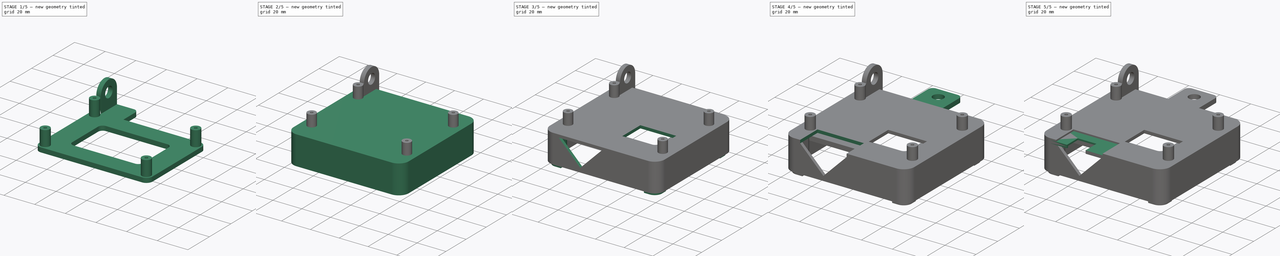
[diagram: build sequence overview — one tinted view per stage of 5, left to right]
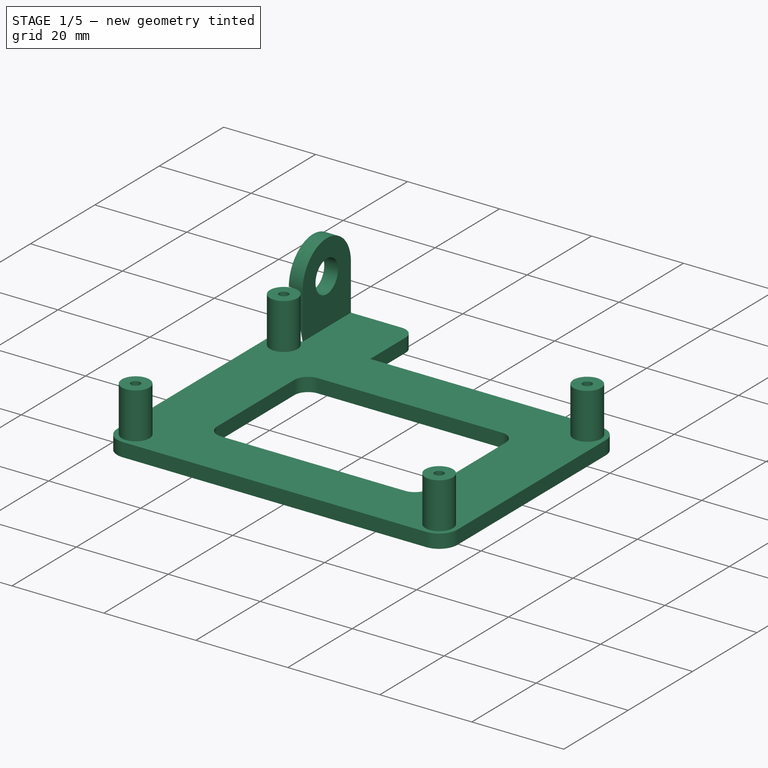
[diagram: stage 1 of 5 — iso view after this stage's code; geometry added in this stage tinted green]
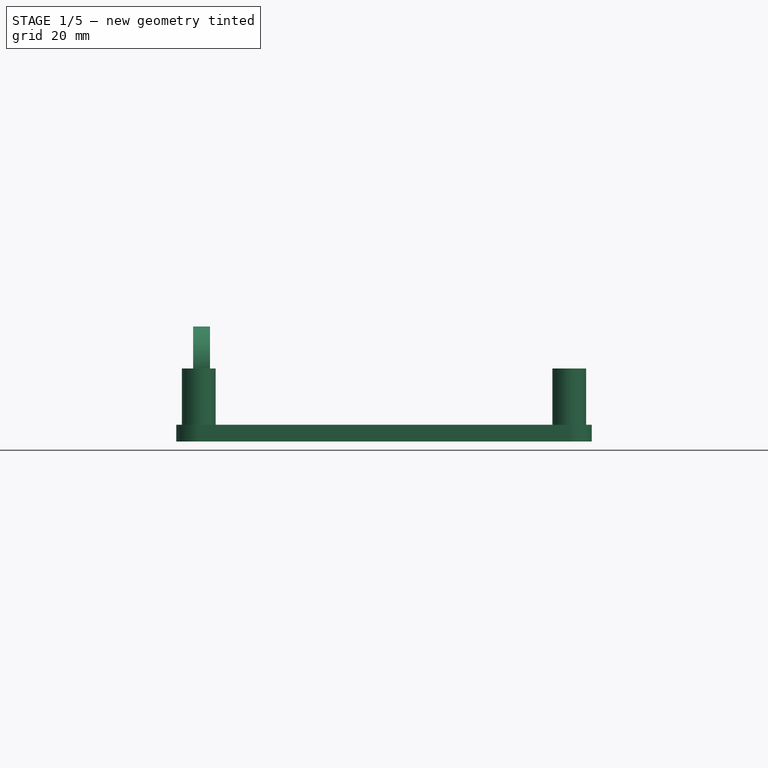
[diagram: stage 1 of 5 — front view after this stage's code; geometry added in this stage tinted green]
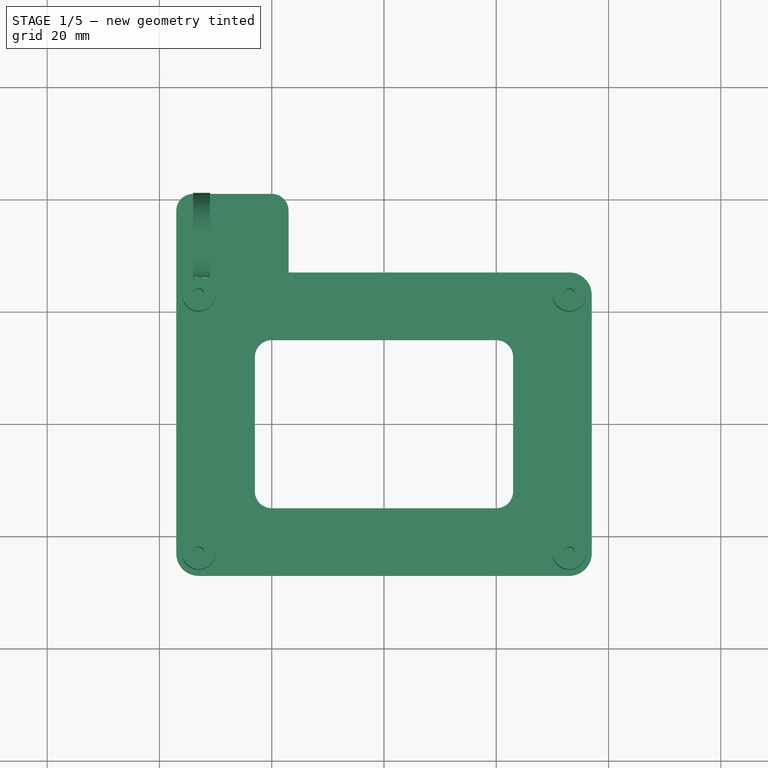
[diagram: stage 1 of 5 — top view after this stage's code; geometry added in this stage tinted green]
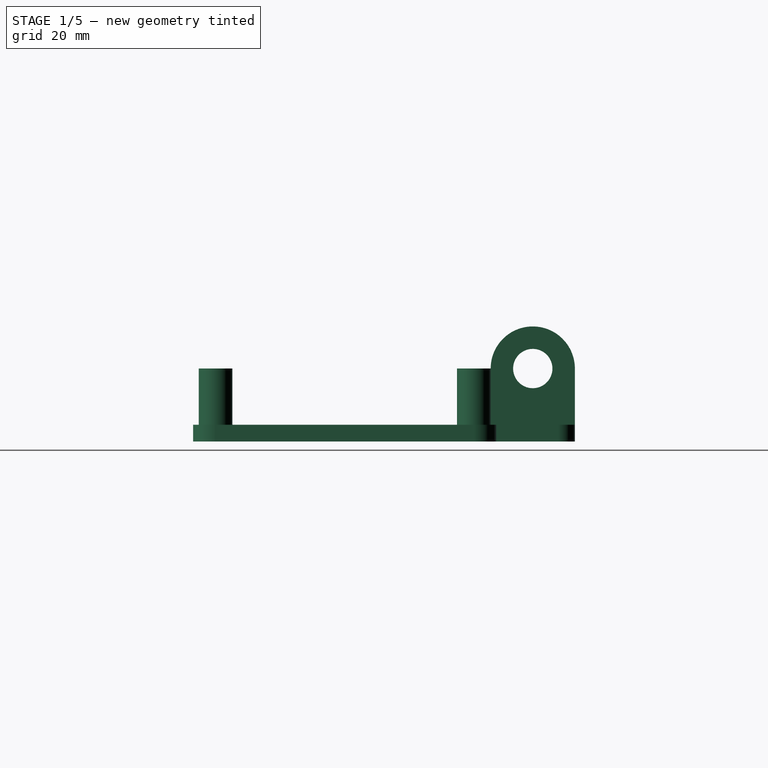
[diagram: stage 1 of 5 — right view after this stage's code; geometry added in this stage tinted green]
FCSTD DOCUMENT  (FreeCAD 1.0R39109 (Git))
Label: LoRa2MQTT
License: All rights reserved
LicenseURL: https://en.wikipedia.org/wiki/All_rights_reserved
objects: Sketcher::SketchObject×15, PartDesign::Pad×10, PartDesign::Pocket×5, PartDesign::Body×3, PartDesign::SubtractiveCylinder×1, PartDesign::SubtractiveBox×1, PartDesign::AdditiveBox×1
note: 87 computed .brp shape members not serialized (recipe doc carries the construction recipe); baked Part::Feature solids carry a one-line shape summary decoded from their .brp

FEATURE [Sketcher::SketchObject] Sketch007
  ArcFitTolerance = 1e-06
  AttachmentSupport = -> [XY_Plane005]
  FullyConstrained = true
  MakeInternals = false
  MapMode = 5
  sketch-geometry (24):
    g0: LineSegment [constr] StartX=-33 StartY=23 StartZ=0 EndX=-33 EndY=-23 EndZ=0
    g1: LineSegment [constr] StartX=-33 StartY=-23 StartZ=0 EndX=33 EndY=-23 EndZ=0
    g2: LineSegment [constr] StartX=33 StartY=-23 StartZ=0 EndX=33 EndY=23 EndZ=0
    g3: LineSegment [constr] StartX=33 StartY=23 StartZ=0 EndX=-33 EndY=23 EndZ=0
    g4: LineSegment StartX=-37 StartY=23 StartZ=0 EndX=-37 EndY=-23 EndZ=0
    g5: LineSegment StartX=-33 StartY=-27 StartZ=0 EndX=33 EndY=-27 EndZ=0
    g6: LineSegment StartX=37 StartY=-23 StartZ=0 EndX=37 EndY=23 EndZ=0
    g7: LineSegment StartX=33 StartY=27 StartZ=0 EndX=-33 EndY=27 EndZ=0
    g8: ArcOfCircle CenterX=-33 CenterY=23 CenterZ=0 NormalX=0 NormalY=0 NormalZ=1 AngleXU=0 Radius=4 StartAngle=1.5708 EndAngle=3.14159
    g9: ArcOfCircle CenterX=-33 CenterY=-23 CenterZ=0 NormalX=0 NormalY=0 NormalZ=1 AngleXU=0 Radius=4 StartAngle=3.14159 EndAngle=4.71239
    g10: ArcOfCircle CenterX=33 CenterY=-23 CenterZ=0 NormalX=0 NormalY=0 NormalZ=1 AngleXU=0 Radius=4 StartAngle=4.71239 EndAngle=6.28319
    g11: ArcOfCircle CenterX=33 CenterY=23 CenterZ=0 NormalX=0 NormalY=0 NormalZ=1 AngleXU=0 Radius=4 StartAngle=1e-16 EndAngle=1.5708
    g12: GeomPoint [constr] X=-37 Y=27 Z=0
    g13: GeomPoint [constr] X=37 Y=-27 Z=0
    g14: LineSegment StartX=-23 StartY=12 StartZ=0 EndX=-23 EndY=-12 EndZ=0
    g15: LineSegment StartX=-20 StartY=-15 StartZ=0 EndX=20 EndY=-15 EndZ=0
    g16: LineSegment StartX=23 StartY=-12 StartZ=0 EndX=23 EndY=12 EndZ=0
    g17: LineSegment StartX=20 StartY=15 StartZ=0 EndX=-20 EndY=15 EndZ=0
    g18: ArcOfCircle CenterX=-20 CenterY=12 CenterZ=0 NormalX=0 NormalY=0 NormalZ=1 AngleXU=0 Radius=3 StartAngle=1.5708 EndAngle=3.14159
    g19: ArcOfCircle CenterX=-20 CenterY=-12 CenterZ=0 NormalX=0 NormalY=0 NormalZ=1 AngleXU=0 Radius=3 StartAngle=3.14159 EndAngle=4.71239
    g20: ArcOfCircle CenterX=20 CenterY=-12 CenterZ=0 NormalX=0 NormalY=0 NormalZ=1 AngleXU=0 Radius=3 StartAngle=4.71239 EndAngle=6.28319
    g21: ArcOfCircle CenterX=20 CenterY=12 CenterZ=0 NormalX=0 NormalY=0 NormalZ=1 AngleXU=0 Radius=3 StartAngle=3e-16 EndAngle=1.5708
    g22: GeomPoint [constr] X=-23 Y=15 Z=0
    g23: GeomPoint [constr] X=23 Y=-15 Z=0
  constraints (56):
    c: Coincident(g0,g1)
    c: Coincident(g1,g2)
    c: Coincident(g2,g3)
    c: Coincident(g3,g0)
    c: Vertical(g0)
    c: Vertical(g2)
    c: Horizontal(g1)
    c: Horizontal(g3)
    c: DistanceX(g3,g3) = 66
    c: DistanceY(g2,g2) = 46
    c: Symmetric(g0,g1,g-1)
    c: Tangent(g4,g8) = -1.5708
    c: Tangent(g4,g9) = -1.5708
    c: Tangent(g5,g9) = -1.5708
    c: Tangent(g5,g10) = -1.5708
    c: Tangent(g6,g10) = -1.5708
    c: Tangent(g6,g11) = -1.5708
    c: Tangent(g7,g11) = -1.5708
    c: Tangent(g7,g8) = -1.5708
    c: Vertical(g4)
    c: Vertical(g6)
    c: Horizontal(g5)
    c: Horizontal(g7)
    c: Equal(g8,g9)
    c: Equal(g9,g10)
    c: Equal(g10,g11)
    c: PointOnObject(g12,g4)
    c: PointOnObject(g12,g7)
    c: PointOnObject(g13,g5)
    c: PointOnObject(g13,g6)
    c: Radius(g11) = 4
    c: Coincident(g8,g0)
    c: Coincident(g10,g1)
    c: Tangent(g14,g18) = -1.5708
    c: Tangent(g14,g19) = -1.5708
    c: Tangent(g15,g19) = -1.5708
    c: Tangent(g15,g20) = -1.5708
    c: Tangent(g16,g20) = -1.5708
    c: Tangent(g16,g21) = -1.5708
    c: Tangent(g17,g21) = -1.5708
    c: Tangent(g17,g18) = -1.5708
    c: Vertical(g14)
    c: Vertical(g16)
    c: Horizontal(g15)
    c: Horizontal(g17)
    c: Equal(g18,g19)
    c: Equal(g19,g20)
    c: Equal(g20,g21)
    c: PointOnObject(g22,g14)
    c: PointOnObject(g22,g17)
    c: PointOnObject(g23,g15)
    c: PointOnObject(g23,g16)
    c: Symmetric(g22,g23,g-1)
    c: Radius(g18) = 3
    c: DistanceX(g22,g23) = 46
    c: DistanceY(g23,g22) = 30
FEATURE [PartDesign::Pad] Pad006
  Direction = (0,0,1)
  Length = 3
  Length2 = 10
  Profile = -> Sketch007
  ReferenceAxis = -> Sketch007 [N_Axis]
  Reversed = true
  Suppressed = false
  Type = 0
FEATURE [Sketcher::SketchObject] Sketch008
  ArcFitTolerance = 1e-06
  AttachmentSupport = -> [XY_Plane005]
  FullyConstrained = true
  MakeInternals = false
  MapMode = 5
  sketch-geometry (12):
    g0: LineSegment [constr] StartX=-33 StartY=23 StartZ=0 EndX=-33 EndY=-23 EndZ=0
    g1: LineSegment [constr] StartX=-33 StartY=-23 StartZ=0 EndX=33 EndY=-23 EndZ=0
    g2: LineSegment [constr] StartX=33 StartY=-23 StartZ=0 EndX=33 EndY=23 EndZ=0
    g3: LineSegment [constr] StartX=33 StartY=23 StartZ=0 EndX=-33 EndY=23 EndZ=0
    g4: Circle CenterX=-33 CenterY=23 CenterZ=0 NormalX=0 NormalY=0 NormalZ=1 AngleXU=0 Radius=3
    g5: Circle CenterX=33 CenterY=23 CenterZ=0 NormalX=0 NormalY=0 NormalZ=1 AngleXU=0 Radius=3
    g6: Circle CenterX=33 CenterY=-23 CenterZ=0 NormalX=0 NormalY=0 NormalZ=1 AngleXU=0 Radius=3
    g7: Circle CenterX=-33 CenterY=-23 CenterZ=0 NormalX=0 NormalY=0 NormalZ=1 AngleXU=0 Radius=3
    g8: Circle CenterX=-33 CenterY=23 CenterZ=0 NormalX=0 NormalY=0 NormalZ=1 AngleXU=0 Radius=1
    g9: Circle CenterX=33 CenterY=23 CenterZ=0 NormalX=0 NormalY=0 NormalZ=1 AngleXU=0 Radius=1
    g10: Circle CenterX=33 CenterY=-23 CenterZ=0 NormalX=0 NormalY=0 NormalZ=1 AngleXU=0 Radius=1
    g11: Circle CenterX=-33 CenterY=-23 CenterZ=0 NormalX=0 NormalY=0 NormalZ=1 AngleXU=0 Radius=1
  constraints (27):
    c: Coincident(g0,g1)
    c: Coincident(g1,g2)
    c: Coincident(g2,g3)
    c: Coincident(g3,g0)
    c: Vertical(g0)
    c: Vertical(g2)
    c: Horizontal(g1)
    c: Horizontal(g3)
    c: DistanceX(g3,g3) = 66
    c: DistanceY(g2,g2) = 46
    c: Symmetric(g0,g1,g-1)
    c: Coincident(g4,g0)
    c: Coincident(g5,g2)
    c: Coincident(g6,g1)
    c: Coincident(g7,g0)
    c: Equal(g4,g5)
    c: Equal(g5,g6)
    c: Equal(g6,g7)
    c: Diameter(g5) = 6
    c: Coincident(g8,g0)
    c: Coincident(g9,g2)
    c: Coincident(g10,g1)
    c: Coincident(g11,g0)
    c: Equal(g11,g8)
    c: Equal(g8,g9)
    c: Equal(g9,g10)
    c: Diameter(g10) = 2
FEATURE [PartDesign::Pad] Pad007
  BaseFeature = -> Pad006
  Direction = (0,0,1)
  Length = 10
  Length2 = 10
  Profile = -> Sketch008
  ReferenceAxis = -> Sketch008 [N_Axis]
  Suppressed = false
  Type = 0
FEATURE [PartDesign::Body] Body006  label="Top"
  AllowCompound = false
  Group = -> [Sketch009,Pad008,Sketch010,Pad009,Sketch014,Pocket002,Sketch016,Pocket003,Sketch017,Pad,Sketch018,Pocket004,Cylinder,Sketch019,Pad012,Box]
  Origin = -> Origin006
  Placement = pos=(0,0,20) rot=(0,0,1;0rad)
  Tip = -> Box
FEATURE [Sketcher::SketchObject] Sketch020
  ArcFitTolerance = 1e-06
  AttachmentSupport = -> [XY_Plane005]
  FullyConstrained = true
  MakeInternals = false
  MapMode = 5
  sketch-geometry (6):
    g0: LineSegment StartX=-37 StartY=38 StartZ=0 EndX=-37 EndY=23 EndZ=0
    g1: LineSegment StartX=-37 StartY=23 StartZ=0 EndX=-17 EndY=23 EndZ=0
    g2: LineSegment StartX=-17 StartY=23 StartZ=0 EndX=-17 EndY=38 EndZ=0
    g3: LineSegment StartX=-34 StartY=41 StartZ=0 EndX=-20 EndY=41 EndZ=0
    g4: ArcOfCircle CenterX=-34 CenterY=38 CenterZ=0 NormalX=0 NormalY=0 NormalZ=1 AngleXU=0 Radius=3 StartAngle=1.5708 EndAngle=3.14159
    g5: ArcOfCircle CenterX=-20 CenterY=38 CenterZ=0 NormalX=0 NormalY=0 NormalZ=1 AngleXU=0 Radius=3 StartAngle=0 EndAngle=1.5708
  constraints (16):
    c: Coincident(g0,g1)
    c: Coincident(g1,g2)
    c: Vertical(g0)
    c: Vertical(g2)
    c: Horizontal(g1)
    c: DistanceX(g0) = -37
    c: DistanceY(g-1,g1) = 23
    c: DistanceX(g1,g1) = 20
    c: Horizontal(g3)
    c: DistanceY(g1,g5) = 15
    c: Radius(g5) = 3
    c: Radius(g4) = 3
    c: Tangent(g4,g3) = 1.5708
    c: Tangent(g4,g0) = -1.5708
    c: Tangent(g5,g3) = 1.5708
    c: Tangent(g5,g2) = -1.5708
FEATURE [PartDesign::Pad] Pad013
  BaseFeature = -> Pad007
  Direction = (0,0,1)
  Length = 3
  Length2 = 10
  Profile = -> Sketch020
  ReferenceAxis = -> Sketch020 [N_Axis]
  Reversed = true
  Suppressed = false
  Type = 0
FEATURE [Sketcher::SketchObject] Sketch021
  ArcFitTolerance = 1e-06
  AttachmentOffset = pos=(0,0,-34) rot=(0,0,1;0rad)
  AttachmentSupport = -> [YZ_Plane005]
  FullyConstrained = true
  MakeInternals = false
  MapMode = 5
  Placement = pos=(-34,0,0) rot=(0.57735,0.57735,0.57735;2.0944rad)
  sketch-geometry (5):
    g0: LineSegment StartX=41 StartY=0 StartZ=0 EndX=41 EndY=10 EndZ=0
    g1: LineSegment StartX=26 StartY=10 StartZ=0 EndX=26 EndY=0 EndZ=0
    g2: LineSegment StartX=26 StartY=0 StartZ=0 EndX=41 EndY=0 EndZ=0
    g3: ArcOfCircle CenterX=33.5 CenterY=10 CenterZ=0 NormalX=0 NormalY=0 NormalZ=1 AngleXU=0 Radius=7.5 StartAngle=0 EndAngle=3.14159
    g4: Circle CenterX=33.5 CenterY=10 CenterZ=0 NormalX=0 NormalY=0 NormalZ=1 AngleXU=0 Radius=3.5
  constraints (13):
    c: Coincident(g1,g2)
    c: Coincident(g2,g0)
    c: Vertical(g0)
    c: Vertical(g1)
    c: Horizontal(g2)
    c: DistanceX(g2,g2) = 15
    c: DistanceX(g1) = 26
    c: DistanceY(g1) = 0
    c: Tangent(g3,g0) = -1.5708
    c: Tangent(g3,g1) = -1.5708
    c: DistanceY(g0,g0) = 10
    c: Coincident(g4,g3)
    c: Diameter(g4) = 7
FEATURE [PartDesign::Pad] Pad014
  BaseFeature = -> Pad013
  Direction = (1,0,0)
  Length = 3
  Length2 = 10
  Profile = -> Sketch021
  ReferenceAxis = -> Sketch021 [N_Axis]
  Suppressed = false
  Type = 0
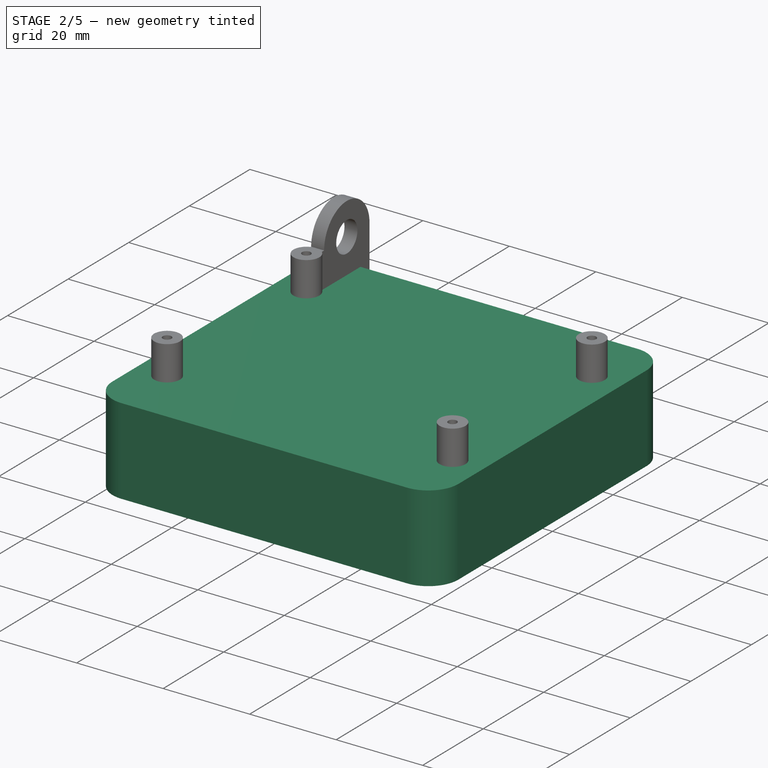
[diagram: stage 2 of 5 — iso view after this stage's code; geometry added in this stage tinted green]
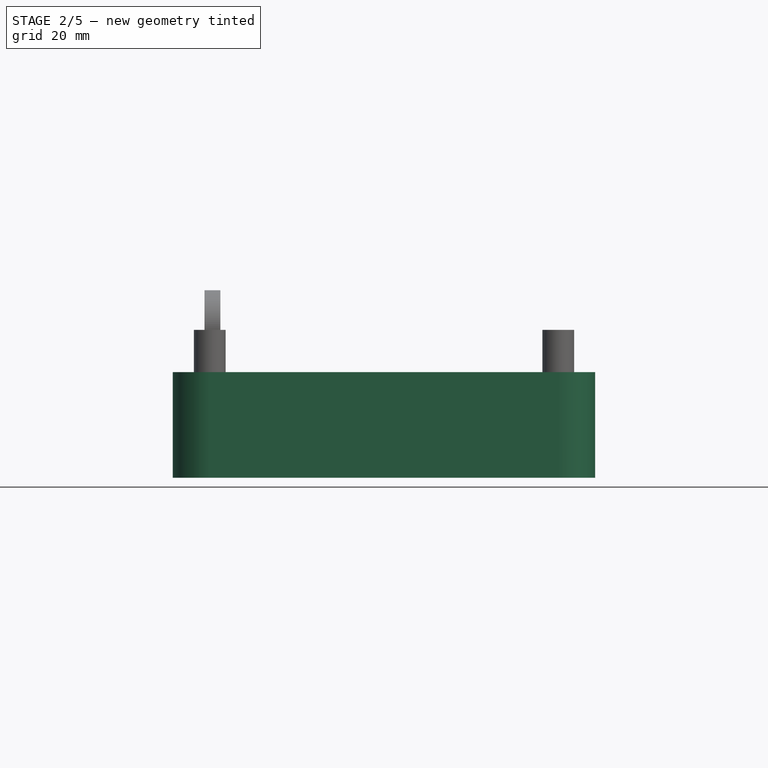
[diagram: stage 2 of 5 — front view after this stage's code; geometry added in this stage tinted green]
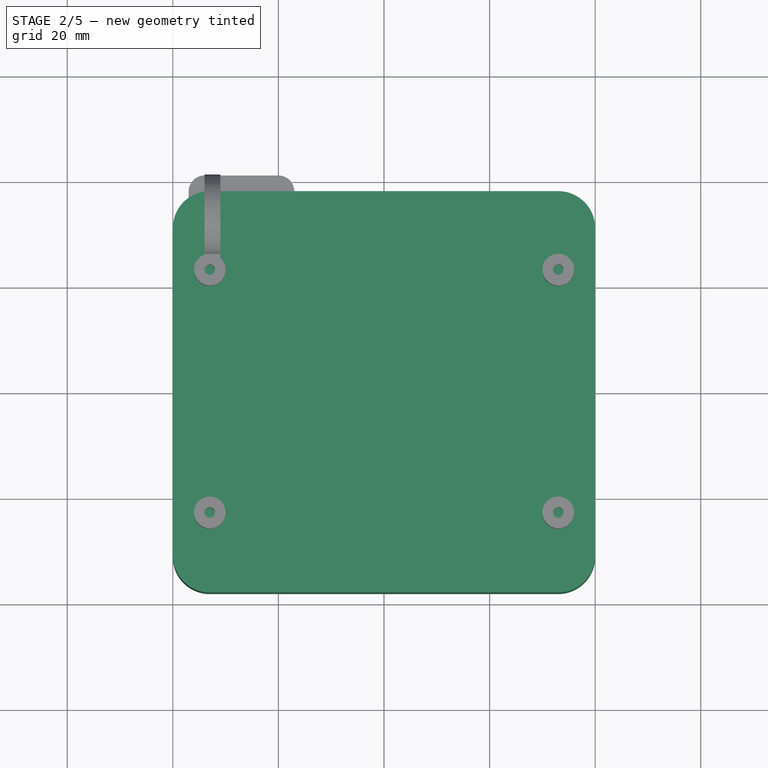
[diagram: stage 2 of 5 — top view after this stage's code; geometry added in this stage tinted green]
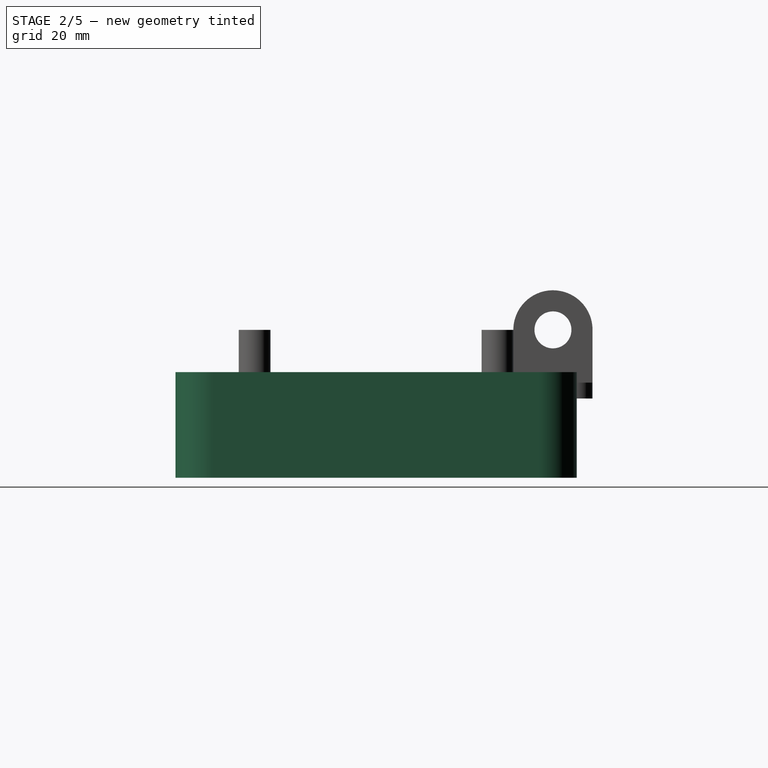
[diagram: stage 2 of 5 — right view after this stage's code; geometry added in this stage tinted green]
FEATURE [Sketcher::SketchObject] Sketch009
  ArcFitTolerance = 1e-06
  AttachmentSupport = -> [XY_Plane006]
  FullyConstrained = true
  MakeInternals = false
  MapMode = 5
  sketch-geometry (14):
    g0: LineSegment [constr] StartX=-33 StartY=23 StartZ=0 EndX=-33 EndY=-23 EndZ=0
    g1: LineSegment [constr] StartX=-33 StartY=-23 StartZ=0 EndX=33 EndY=-23 EndZ=0
    g2: LineSegment [constr] StartX=33 StartY=-23 StartZ=0 EndX=33 EndY=23 EndZ=0
    g3: LineSegment [constr] StartX=33 StartY=23 StartZ=0 EndX=-33 EndY=23 EndZ=0
    g4: LineSegment StartX=-40 StartY=31 StartZ=0 EndX=-40 EndY=-31 EndZ=0
    g5: LineSegment StartX=-33 StartY=-38 StartZ=0 EndX=33 EndY=-38 EndZ=0
    g6: LineSegment StartX=40 StartY=-31 StartZ=0 EndX=40 EndY=31 EndZ=0
    g7: LineSegment StartX=33 StartY=38 StartZ=0 EndX=-33 EndY=38 EndZ=0
    g8: ArcOfCircle CenterX=-33 CenterY=31 CenterZ=0 NormalX=0 NormalY=0 NormalZ=1 AngleXU=0 Radius=7 StartAngle=1.5708 EndAngle=3.14159
    g9: ArcOfCircle CenterX=-33 CenterY=-31 CenterZ=0 NormalX=0 NormalY=0 NormalZ=1 AngleXU=0 Radius=7 StartAngle=3.14159 EndAngle=4.71239
    g10: ArcOfCircle CenterX=33 CenterY=-31 CenterZ=0 NormalX=0 NormalY=0 NormalZ=1 AngleXU=0 Radius=7 StartAngle=4.71239 EndAngle=6.28319
    g11: ArcOfCircle CenterX=33 CenterY=31 CenterZ=0 NormalX=0 NormalY=0 NormalZ=1 AngleXU=0 Radius=7 StartAngle=8.64e-14 EndAngle=1.5708
    g12: GeomPoint [constr] X=-40 Y=38 Z=0
    g13: GeomPoint [constr] X=40 Y=-38 Z=0
  constraints (35):
    c: Coincident(g0,g1)
    c: Coincident(g1,g2)
    c: Coincident(g2,g3)
    c: Coincident(g3,g0)
    c: Vertical(g0)
    c: Vertical(g2)
    c: Horizontal(g1)
    c: Horizontal(g3)
    c: DistanceX(g3,g3) = 66
    c: DistanceY(g2,g2) = 46
    c: Symmetric(g0,g1,g-1)
    c: Tangent(g4,g8) = -1.5708
    c: Tangent(g4,g9) = -1.5708
    c: Tangent(g5,g9) = -1.5708
    c: Tangent(g5,g10) = -1.5708
    c: Tangent(g6,g10) = -1.5708
    c: Tangent(g6,g11) = -1.5708
    c: Tangent(g7,g11) = -1.5708
    c: Tangent(g7,g8) = -1.5708
    c: Vertical(g4)
    c: Vertical(g6)
    c: Horizontal(g5)
    c: Horizontal(g7)
    c: Equal(g8,g9)
    c: Equal(g9,g10)
    c: Equal(g10,g11)
    c: PointOnObject(g12,g4)
    c: PointOnObject(g12,g7)
    c: PointOnObject(g13,g5)
    c: PointOnObject(g13,g6)
    c: Radius(g11) = 7
    c: DistanceY(g0,g8) = 8
    c: DistanceY(g10,g1) = 8
    c: DistanceX(g8,g0) = 0
    c: DistanceX(g1,g10) = 0
FEATURE [PartDesign::Pad] Pad008
  Direction = (0,0,1)
  Length = 2
  Length2 = 10
  Profile = -> Sketch009
  ReferenceAxis = -> Sketch009 [N_Axis]
  Suppressed = false
  Type = 0
FEATURE [Sketcher::SketchObject] Sketch010
  ArcFitTolerance = 1e-06
  AttachmentSupport = -> [XY_Plane006]
  FullyConstrained = true
  MakeInternals = false
  MapMode = 5
  sketch-geometry (24):
    g0: LineSegment [constr] StartX=-33 StartY=23 StartZ=0 EndX=-33 EndY=-23 EndZ=0
    g1: LineSegment [constr] StartX=-33 StartY=-23 StartZ=0 EndX=33 EndY=-23 EndZ=0
    g2: LineSegment [constr] StartX=33 StartY=-23 StartZ=0 EndX=33 EndY=23 EndZ=0
    g3: LineSegment [constr] StartX=33 StartY=23 StartZ=0 EndX=-33 EndY=23 EndZ=0
    g4: LineSegment StartX=-40 StartY=31 StartZ=0 EndX=-40 EndY=-31 EndZ=0
    g5: LineSegment StartX=-33 StartY=-38 StartZ=0 EndX=33 EndY=-38 EndZ=0
    g6: LineSegment StartX=40 StartY=-31 StartZ=0 EndX=40 EndY=31 EndZ=0
    g7: LineSegment StartX=33 StartY=38 StartZ=0 EndX=-33 EndY=38 EndZ=0
    g8: ArcOfCircle CenterX=-33 CenterY=31 CenterZ=0 NormalX=0 NormalY=0 NormalZ=1 AngleXU=0 Radius=7 StartAngle=1.5708 EndAngle=3.14159
    g9: ArcOfCircle CenterX=-33 CenterY=-31 CenterZ=0 NormalX=0 NormalY=0 NormalZ=1 AngleXU=0 Radius=7 StartAngle=3.14159 EndAngle=4.71239
    g10: ArcOfCircle CenterX=33 CenterY=-31 CenterZ=0 NormalX=0 NormalY=0 NormalZ=1 AngleXU=0 Radius=7 StartAngle=4.71239 EndAngle=6.28319
    g11: ArcOfCircle CenterX=33 CenterY=31 CenterZ=0 NormalX=0 NormalY=0 NormalZ=1 AngleXU=0 Radius=7 StartAngle=2e-16 EndAngle=1.5708
    g12: GeomPoint [constr] X=-40 Y=38 Z=0
    g13: GeomPoint [constr] X=40 Y=-38 Z=0
    g14: LineSegment StartX=33 StartY=36 StartZ=0 EndX=-33 EndY=36 EndZ=0
    g15: LineSegment StartX=-38 StartY=31 StartZ=0 EndX=-38 EndY=-31 EndZ=0
    g16: LineSegment StartX=-33 StartY=-36 StartZ=0 EndX=33 EndY=-36 EndZ=0
    g17: LineSegment StartX=38 StartY=-31 StartZ=0 EndX=38 EndY=31 EndZ=0
    g18: ArcOfCircle CenterX=33 CenterY=31 CenterZ=0 NormalX=0 NormalY=0 NormalZ=1 AngleXU=0 Radius=5 StartAngle=0 EndAngle=1.5708
    g19: ArcOfCircle CenterX=-33 CenterY=31 CenterZ=0 NormalX=0 NormalY=0 NormalZ=1 AngleXU=0 Radius=5 StartAngle=1.5708 EndAngle=3.14159
    g20: ArcOfCircle CenterX=-33 CenterY=-31 CenterZ=0 NormalX=0 NormalY=0 NormalZ=1 AngleXU=0 Radius=5 StartAngle=3.14159 EndAngle=4.71239
    g21: ArcOfCircle CenterX=33 CenterY=-31 CenterZ=0 NormalX=0 NormalY=0 NormalZ=1 AngleXU=0 Radius=5 StartAngle=4.71239 EndAngle=6.28319
    g22: GeomPoint [constr] X=38 Y=36 Z=0
    g23: GeomPoint [constr] X=-38 Y=-36 Z=0
  constraints (57):
    c: Coincident(g0,g1)
    c: Coincident(g1,g2)
    c: Coincident(g2,g3)
    c: Coincident(g3,g0)
    c: Vertical(g0)
    c: Vertical(g2)
    c: Horizontal(g1)
    c: Horizontal(g3)
    c: DistanceX(g3,g3) = 66
    c: DistanceY(g2,g2) = 46
    c: Symmetric(g0,g1,g-1)
    c: Tangent(g4,g8) = -1.5708
    c: Tangent(g4,g9) = -1.5708
    c: Tangent(g5,g9) = -1.5708
    c: Tangent(g5,g10) = -1.5708
    c: Tangent(g6,g10) = -1.5708
    c: Tangent(g6,g11) = -1.5708
    c: Tangent(g7,g11) = -1.5708
    c: Tangent(g7,g8) = -1.5708
    c: Vertical(g4)
    c: Vertical(g6)
    c: Horizontal(g5)
    c: Horizontal(g7)
    c: Equal(g8,g9)
    c: Equal(g9,g10)
    c: Equal(g10,g11)
    c: PointOnObject(g12,g4)
    c: PointOnObject(g12,g7)
    c: PointOnObject(g13,g5)
    c: PointOnObject(g13,g6)
    c: Radius(g11) = 7
    c: DistanceY(g0,g8) = 8
    c: DistanceY(g10,g1) = 8
    c: DistanceX(g8,g0) = 0
    c: DistanceX(g1,g10) = 0
    c: Tangent(g14,g18) = -1.5708
    c: Tangent(g14,g19) = -1.5708
    c: Tangent(g15,g19) = -1.5708
    c: Tangent(g15,g20) = -1.5708
    c: Tangent(g16,g20) = -1.5708
    c: Tangent(g16,g21) = -1.5708
    c: Tangent(g17,g21) = -1.5708
    c: Tangent(g17,g18) = -1.5708
    c: Horizontal(g14)
    c: Horizontal(g16)
    c: Vertical(g15)
    c: Vertical(g17)
    c: Equal(g18,g19)
    c: Equal(g19,g20)
    c: Equal(g20,g21)
    c: PointOnObject(g22,g14)
    c: PointOnObject(g22,g17)
    c: PointOnObject(g23,g15)
    c: PointOnObject(g23,g16)
    c: Coincident(g18,g11)
    c: Coincident(g9,g20)
    c: Radius(g19) = 5
FEATURE [PartDesign::Pad] Pad009
  BaseFeature = -> Pad008
  Direction = (0,0,1)
  Length = 18
  Length2 = 10
  Profile = -> Sketch010
  ReferenceAxis = -> Sketch010 [N_Axis]
  Reversed = true
  Suppressed = false
  Type = 0
FEATURE [PartDesign::AdditiveBox] Box001
  AttacherType = Attacher::AttachEngine3D
  AttachmentOffset = pos=(-34,24,0) rot=(0,0,1;0rad)
  AttachmentSupport = -> [XY_Plane005]
  BaseFeature = -> Pad014
  Height = 10
  Length = 3
  MapMode = 5
  Placement = pos=(-34,24,0) rot=(0,0,1;0rad)
  Suppressed = false
  Width = 3
FEATURE [PartDesign::Body] Body005  label="Base"
  AllowCompound = false
  Group = -> [Sketch007,Pad006,Sketch008,Pad007,Sketch020,Pad013,Sketch021,Pad014,Box001]
  Origin = -> Origin005
  Tip = -> Box001
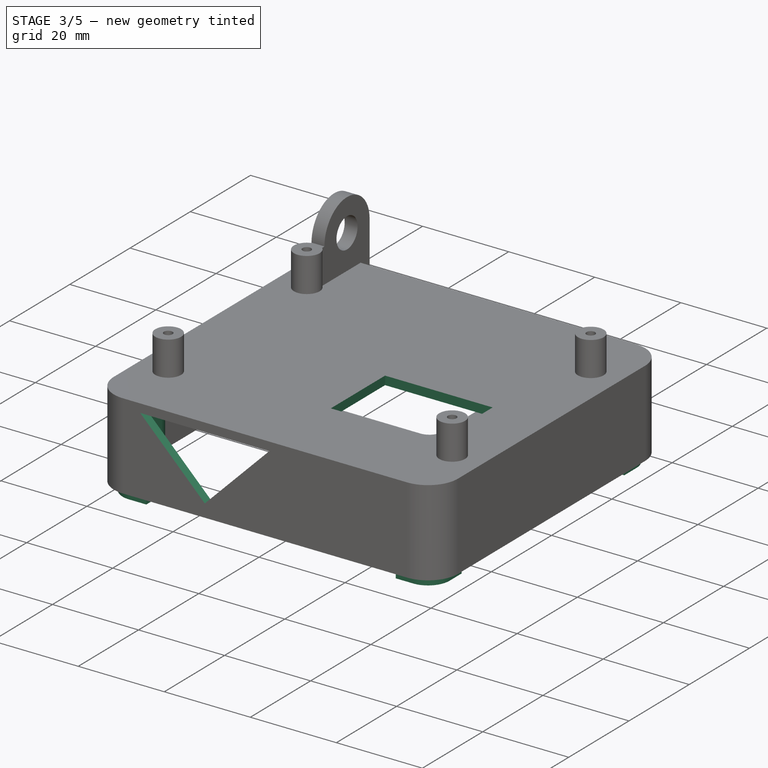
[diagram: stage 3 of 5 — iso view after this stage's code; geometry added in this stage tinted green]
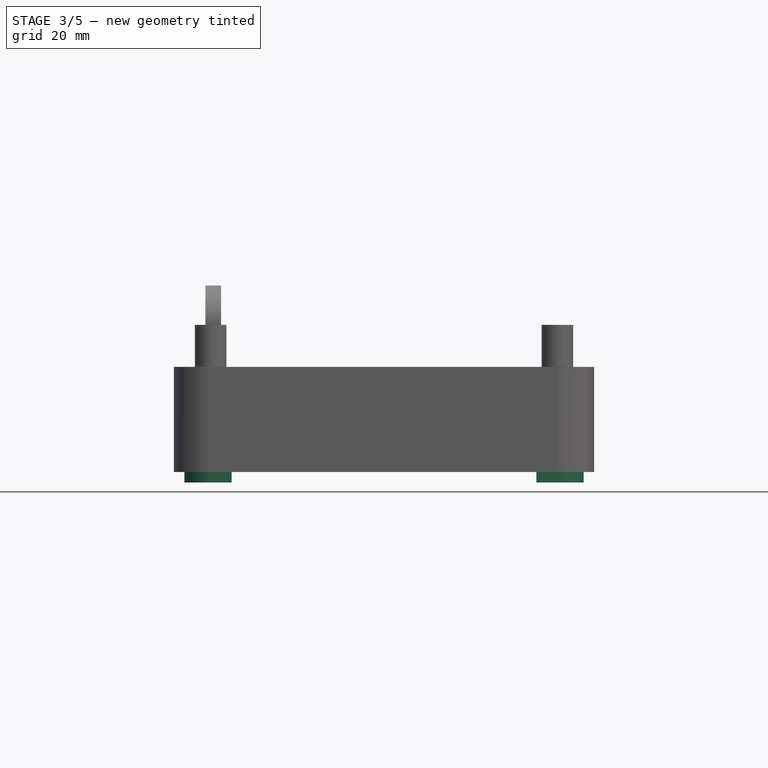
[diagram: stage 3 of 5 — front view after this stage's code; geometry added in this stage tinted green]
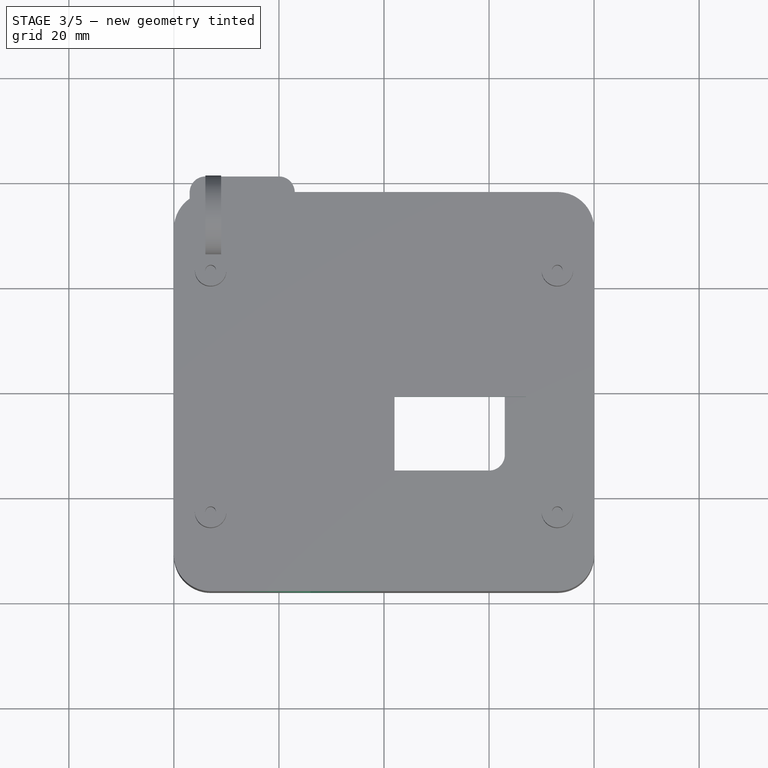
[diagram: stage 3 of 5 — top view after this stage's code; geometry added in this stage tinted green]
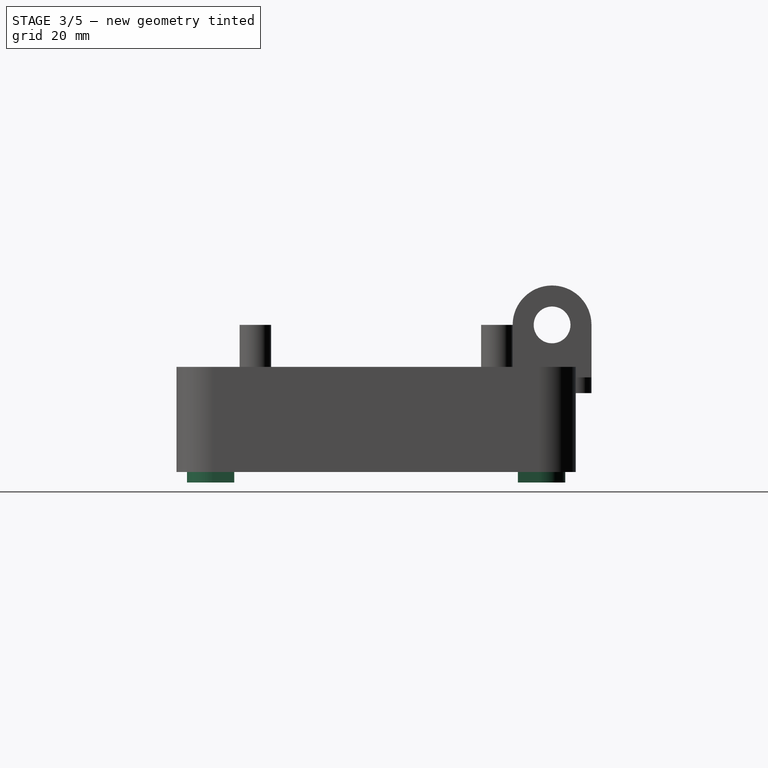
[diagram: stage 3 of 5 — right view after this stage's code; geometry added in this stage tinted green]
FEATURE [PartDesign::Body] Body007  label="Exp"
  AllowCompound = false
  Group = -> [Sketch011,Pad010,Sketch012,Pad011,Sketch013,Pocket,Sketch,Pocket001]
  Origin = -> Origin007
  Placement = pos=(0,0,20) rot=(0,0,1;0rad)
  Tip = -> Pocket001
FEATURE [Sketcher::SketchObject] Sketch014
  ArcFitTolerance = 1e-06
  AttachmentSupport = -> [XY_Plane006]
  FullyConstrained = true
  MakeInternals = false
  MapMode = 5
  sketch-geometry (8):
    g0: LineSegment [constr] StartX=-33 StartY=23 StartZ=0 EndX=-33 EndY=-23 EndZ=0
    g1: LineSegment [constr] StartX=-33 StartY=-23 StartZ=0 EndX=33 EndY=-23 EndZ=0
    g2: LineSegment [constr] StartX=33 StartY=-23 StartZ=0 EndX=33 EndY=23 EndZ=0
    g3: LineSegment [constr] StartX=33 StartY=23 StartZ=0 EndX=-33 EndY=23 EndZ=0
    g4: LineSegment StartX=2 StartY=-1 StartZ=0 EndX=2 EndY=-19 EndZ=0
    g5: LineSegment StartX=2 StartY=-19 StartZ=0 EndX=27 EndY=-19 EndZ=0
    g6: LineSegment StartX=27 StartY=-19 StartZ=0 EndX=27 EndY=-1 EndZ=0
    g7: LineSegment StartX=27 StartY=-1 StartZ=0 EndX=2 EndY=-1 EndZ=0
  constraints (23):
    c: Coincident(g0,g1)
    c: Coincident(g1,g2)
    c: Coincident(g2,g3)
    c: Coincident(g3,g0)
    c: Vertical(g0)
    c: Vertical(g2)
    c: Horizontal(g1)
    c: Horizontal(g3)
    c: DistanceX(g3,g3) = 66
    c: DistanceY(g2,g2) = 46
    c: Symmetric(g0,g1,g-1)
    c: Coincident(g4,g5)
    c: Coincident(g5,g6)
    c: Coincident(g6,g7)
    c: Coincident(g7,g4)
    c: Vertical(g4)
    c: Vertical(g6)
    c: Horizontal(g5)
    c: Horizontal(g7)
    c: DistanceX(g7,g7) = 25
    c: DistanceY(g6,g6) = 18
    c: DistanceX(g5,g1) = 6
    c: DistanceY(g1,g5) = 4
FEATURE [PartDesign::Pocket] Pocket002
  BaseFeature = -> Pad009
  Direction = (0,0,-1)
  Length = 2
  Length2 = 5
  Profile = -> Sketch014
  ReferenceAxis = -> Sketch014 [N_Axis]
  Reversed = true
  Suppressed = false
  Type = 0
FEATURE [Sketcher::SketchObject] Sketch016
  ArcFitTolerance = 1e-06
  AttachmentOffset = pos=(0,0,38) rot=(0,0,1;0rad)
  AttachmentSupport = -> [XZ_Plane006]
  FullyConstrained = true
  MakeInternals = false
  MapMode = 5
  Placement = pos=(0,-38,8.4e-15) rot=(1,0,0;1.5708rad)
  sketch-geometry (4):
    g0: LineSegment StartX=1 StartY=0 StartZ=0 EndX=-29 EndY=0 EndZ=0
    g1: LineSegment StartX=-29 StartY=0 StartZ=0 EndX=-14 EndY=-15 EndZ=0
    g2: LineSegment StartX=-14 StartY=-15 StartZ=0 EndX=1 EndY=1.8e-15 EndZ=0
    g3: GeomPoint X=-14 Y=0 Z=0
  constraints (10):
    c: Horizontal(g0)
    c: Coincident(g1,g2)
    c: Equal(g2,g1)
    c: DistanceY(g1,g1) = 15
    c: Symmetric(g0,g0,g3)
    c: DistanceX(g3,g-1) = 14
    c: Coincident(g0,g2)
    c: Coincident(g1,g0)
    c: PointOnObject(g0,g-1)
    c: DistanceX(g-1,g0) = 1
FEATURE [PartDesign::Pocket] Pocket003
  BaseFeature = -> Pocket002
  Direction = (0,1,-2e-16)
  Length = 2
  Length2 = 5
  Profile = -> Sketch016
  ReferenceAxis = -> Sketch016 [N_Axis]
  Suppressed = false
  Type = 0
FEATURE [Sketcher::SketchObject] Sketch017
  ArcFitTolerance = 1e-06
  AttachmentSupport = -> [XY_Plane006]
  FullyConstrained = true
  MakeInternals = false
  MapMode = 5
  sketch-geometry (28):
    g0: LineSegment [constr] StartX=-33 StartY=31 StartZ=0 EndX=-33 EndY=-31 EndZ=0
    g1: LineSegment [constr] StartX=-33 StartY=-31 StartZ=0 EndX=33 EndY=-31 EndZ=0
    g2: LineSegment [constr] StartX=33 StartY=-31 StartZ=0 EndX=33 EndY=31 EndZ=0
    g3: LineSegment [constr] StartX=33 StartY=31 StartZ=0 EndX=-33 EndY=31 EndZ=0
    g4: ArcOfCircle CenterX=-33 CenterY=31 CenterZ=0 NormalX=0 NormalY=0 NormalZ=1 AngleXU=0 Radius=4 StartAngle=4.71239 EndAngle=6.28319
    g5: ArcOfCircle CenterX=33 CenterY=31 CenterZ=0 NormalX=0 NormalY=0 NormalZ=1 AngleXU=0 Radius=4 StartAngle=3.14159 EndAngle=4.71239
    g6: ArcOfCircle CenterX=33 CenterY=-31 CenterZ=0 NormalX=0 NormalY=0 NormalZ=1 AngleXU=0 Radius=4 StartAngle=1.5708 EndAngle=3.14159
    g7: ArcOfCircle CenterX=-33 CenterY=-31 CenterZ=0 NormalX=0 NormalY=0 NormalZ=1 AngleXU=0 Radius=4 StartAngle=8e-16 EndAngle=1.5708
    g8: ArcOfCircle CenterX=-33 CenterY=31 CenterZ=0 NormalX=0 NormalY=0 NormalZ=1 AngleXU=0 Radius=5 StartAngle=1.5708 EndAngle=3.14159
    g9: ArcOfCircle CenterX=33 CenterY=31 CenterZ=0 NormalX=0 NormalY=0 NormalZ=1 AngleXU=0 Radius=5 StartAngle=0 EndAngle=1.5708
    g10: ArcOfCircle CenterX=33 CenterY=-31 CenterZ=0 NormalX=0 NormalY=0 NormalZ=1 AngleXU=0 Radius=5 StartAngle=4.71239 EndAngle=6.28319
    g11: ArcOfCircle CenterX=-33 CenterY=-31 CenterZ=0 NormalX=0 NormalY=0 NormalZ=1 AngleXU=0 Radius=5 StartAngle=3.14159 EndAngle=4.71239
    g12: LineSegment StartX=-33 StartY=-27 StartZ=0 EndX=-38 EndY=-27 EndZ=0
    g13: LineSegment StartX=-38 StartY=-27 StartZ=0 EndX=-38 EndY=-31 EndZ=0
    g14: LineSegment StartX=-29 StartY=-31 StartZ=0 EndX=-29 EndY=-36 EndZ=0
    g15: LineSegment StartX=-29 StartY=-36 StartZ=0 EndX=-33 EndY=-36 EndZ=0
    g16: LineSegment StartX=29 StartY=-31 StartZ=0 EndX=29 EndY=-36 EndZ=0
    g17: LineSegment StartX=29 StartY=-36 StartZ=0 EndX=33 EndY=-36 EndZ=0
    g18: LineSegment StartX=29 StartY=31 StartZ=0 EndX=29 EndY=36 EndZ=0
    g19: LineSegment StartX=29 StartY=36 StartZ=0 EndX=33 EndY=36 EndZ=0
    g20: LineSegment StartX=33 StartY=27 StartZ=0 EndX=38 EndY=27 EndZ=0
    g21: LineSegment StartX=38 StartY=27 StartZ=0 EndX=38 EndY=31 EndZ=0
    g22: LineSegment StartX=33 StartY=-27 StartZ=0 EndX=38 EndY=-27 EndZ=0
    g23: LineSegment StartX=38 StartY=-31 StartZ=0 EndX=38 EndY=-27 EndZ=0
    g24: LineSegment StartX=-29 StartY=31 StartZ=0 EndX=-29 EndY=36 EndZ=0
    g25: LineSegment StartX=-29 StartY=36 StartZ=0 EndX=-33 EndY=36 EndZ=0
    g26: LineSegment StartX=-33 StartY=27 StartZ=0 EndX=-38 EndY=27 EndZ=0
    g27: LineSegment StartX=-38 StartY=27 StartZ=0 EndX=-38 EndY=31 EndZ=0
  constraints (67):
    c: Coincident(g0,g1)
    c: Coincident(g1,g2)
    c: Coincident(g2,g3)
    c: Coincident(g3,g0)
    c: Vertical(g0)
    c: Vertical(g2)
    c: Horizontal(g1)
    c: Horizontal(g3)
    c: DistanceX(g3,g3) = 66
    c: DistanceY(g0,g0) = 62
    c: Symmetric(g0,g1,g-1)
    c: Coincident(g4,g0)
    c: PointOnObject(g4,g0)
    c: PointOnObject(g4,g3)
    c: Coincident(g5,g2)
    c: PointOnObject(g5,g3)
    c: PointOnObject(g5,g2)
    c: Coincident(g6,g1)
    c: PointOnObject(g6,g2)
    c: PointOnObject(g6,g1)
    c: Coincident(g7,g0)
    c: PointOnObject(g7,g0)
    c: PointOnObject(g7,g1)
    c: Coincident(g8,g0)
    c: Coincident(g9,g2)
    c: Coincident(g10,g1)
    c: Coincident(g11,g0)
    c: Equal(g9,g8)
    c: Equal(g8,g11)
    c: Equal(g11,g10)
    c: Diameter(g9) = 10
    c: Equal(g4,g5)
    c: Equal(g5,g6)
    c: Equal(g6,g7)
    c: Diameter(g7) = 8
    c: Tangent(g7,g12) = -1.5708
    c: Coincident(g12,g13)
    c: Tangent(g7,g14) = 1.5708
    c: Coincident(g14,g15)
    c: Coincident(g16,g17)
    c: Tangent(g5,g18) = 1.5708
    c: Coincident(g18,g19)
    c: Horizontal(g19)
    c: Tangent(g5,g20) = -1.5708
    c: Coincident(g20,g21)
    c: Vertical(g21)
    c: Coincident(g23,g22)
    c: Tangent(g23,g10) = -1.5708
    c: Tangent(g17,g10) = -1.5708
    c: Tangent(g22,g6) = 1.5708
    c: Vertical(g23)
    c: Horizontal(g17)
    c: Tangent(g6,g16) = -1.5708
    c: Tangent(g13,g11) = -1.5708
    c: Tangent(g15,g11) = 1.5708
    c: Horizontal(g15)
    c: Vertical(g13)
    c: Tangent(g19,g9) = 1.5708
    c: Tangent(g21,g9) = -1.5708
    c: Tangent(g4,g24) = -1.5708
    c: Coincident(g24,g25)
    c: Tangent(g4,g26) = 1.5708
    c: Coincident(g26,g27)
    c: Tangent(g25,g8) = -1.5708
    c: Tangent(g27,g8) = 1.5708
    c: Horizontal(g25)
    c: Vertical(g27)
FEATURE [PartDesign::Pad] Pad
  BaseFeature = -> Pocket003
  Direction = (0,0,1)
  Length = 20
  Length2 = 10
  Profile = -> Sketch017
  ReferenceAxis = -> Sketch017 [N_Axis]
  Reversed = true
  Suppressed = false
  Type = 0
FEATURE [Sketcher::SketchObject] Sketch018
  ArcFitTolerance = 1e-06
  AttachmentOffset = pos=(0,0,-20) rot=(0,0,1;0rad)
  AttachmentSupport = -> [XY_Plane006]
  FullyConstrained = true
  MakeInternals = false
  MapMode = 5
  Placement = pos=(0,0,-20) rot=(0,0,1;0rad)
  sketch-geometry (8):
    g0: LineSegment [constr] StartX=-33 StartY=31 StartZ=0 EndX=-33 EndY=-31 EndZ=0
    g1: LineSegment [constr] StartX=-33 StartY=-31 StartZ=0 EndX=33 EndY=-31 EndZ=0
    g2: LineSegment [constr] StartX=33 StartY=-31 StartZ=0 EndX=33 EndY=31 EndZ=0
    g3: LineSegment [constr] StartX=33 StartY=31 StartZ=0 EndX=-33 EndY=31 EndZ=0
    g4: Circle CenterX=-33 CenterY=31 CenterZ=0 NormalX=0 NormalY=0 NormalZ=1 AngleXU=0 Radius=1.5
    g5: Circle CenterX=33 CenterY=31 CenterZ=0 NormalX=0 NormalY=0 NormalZ=1 AngleXU=0 Radius=1.5
    g6: Circle CenterX=33 CenterY=-31 CenterZ=0 NormalX=0 NormalY=0 NormalZ=1 AngleXU=0 Radius=1.5
    g7: Circle CenterX=-33 CenterY=-31 CenterZ=0 NormalX=0 NormalY=0 NormalZ=1 AngleXU=0 Radius=1.5
  constraints (19):
    c: Coincident(g0,g1)
    c: Coincident(g1,g2)
    c: Coincident(g2,g3)
    c: Coincident(g3,g0)
    c: Vertical(g0)
    c: Vertical(g2)
    c: Horizontal(g1)
    c: Horizontal(g3)
    c: DistanceX(g3,g3) = 66
    c: DistanceY(g0,g0) = 62
    c: Symmetric(g0,g1,g-1)
    c: Coincident(g4,g0)
    c: Coincident(g5,g2)
    c: Coincident(g6,g1)
    c: Coincident(g7,g0)
    c: Equal(g7,g6)
    c: Equal(g6,g5)
    c: Equal(g5,g4)
    c: Diameter(g5) = 3
FEATURE [PartDesign::Pocket] Pocket004
  BaseFeature = -> Pad
  Direction = (0,0,-1)
  Length = 10
  Length2 = 5
  Profile = -> Sketch018
  ReferenceAxis = -> Sketch018 [N_Axis]
  Reversed = true
  Suppressed = false
  Type = 0
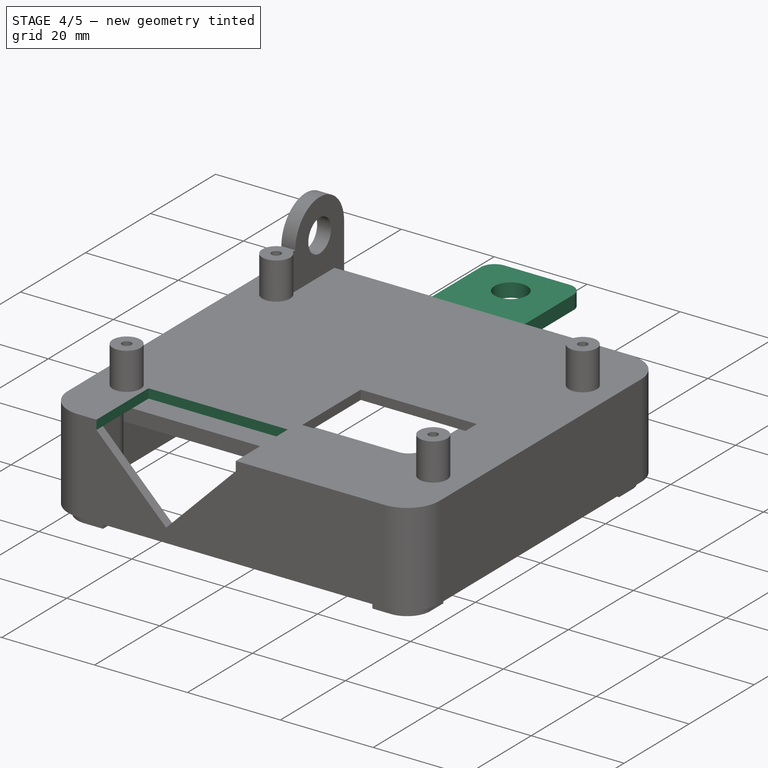
[diagram: stage 4 of 5 — iso view after this stage's code; geometry added in this stage tinted green]
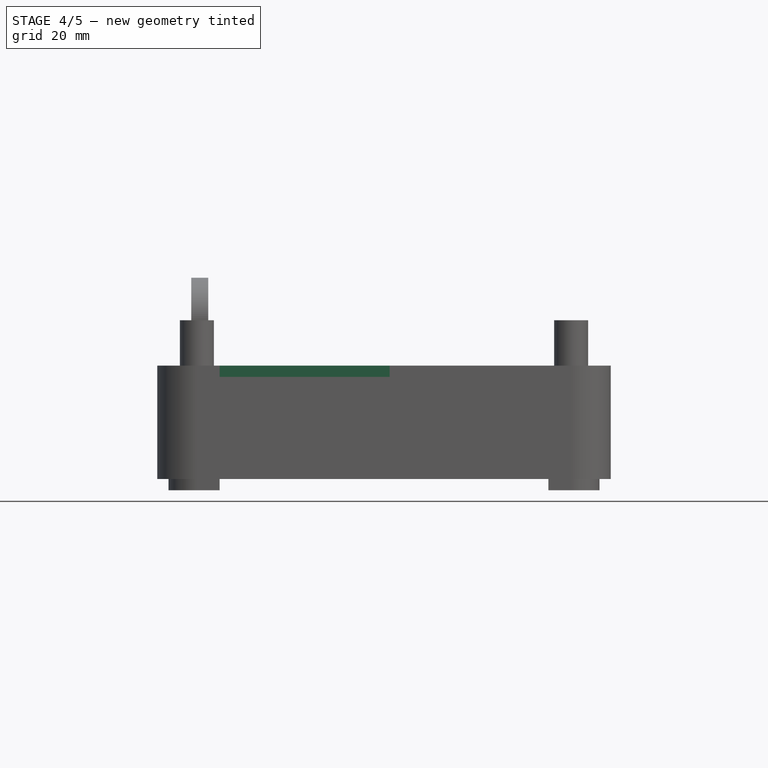
[diagram: stage 4 of 5 — front view after this stage's code; geometry added in this stage tinted green]
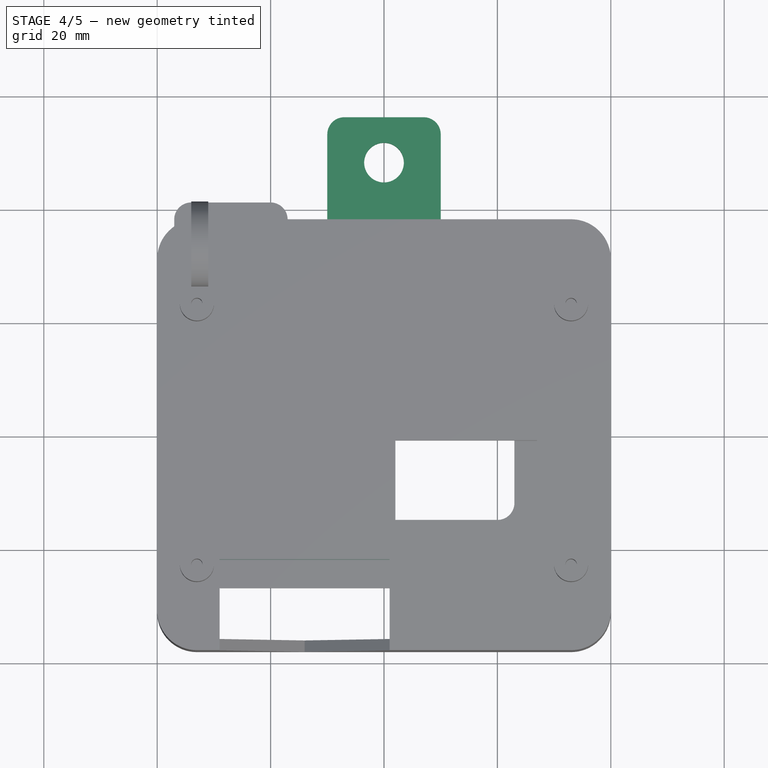
[diagram: stage 4 of 5 — top view after this stage's code; geometry added in this stage tinted green]
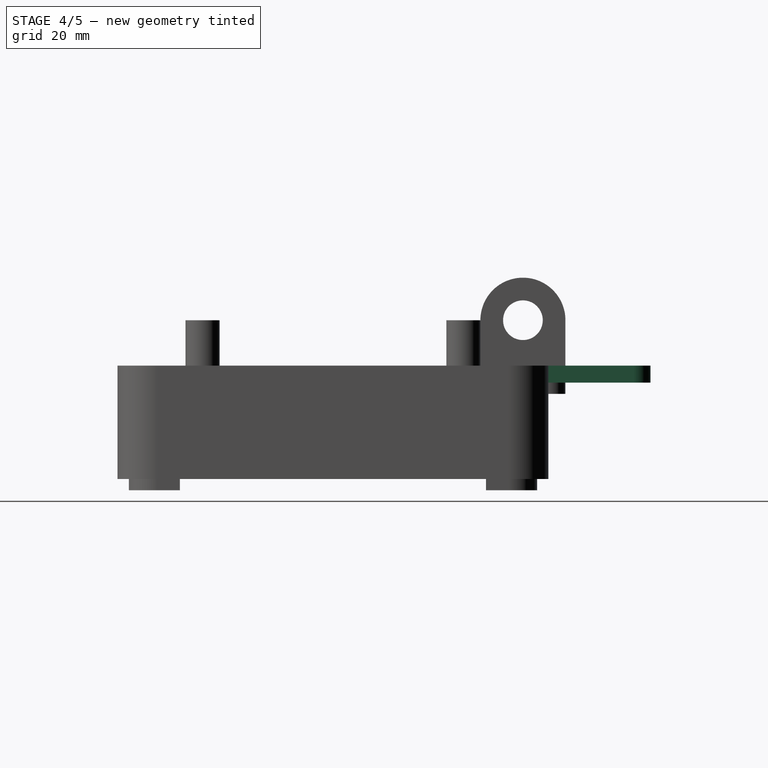
[diagram: stage 4 of 5 — right view after this stage's code; geometry added in this stage tinted green]
FEATURE [PartDesign::SubtractiveCylinder] Cylinder
  Angle = 360
  AttacherType = Attacher::AttachEngine3D
  AttachmentOffset = pos=(0,-10,-39) rot=(0,0,1;0rad)
  AttachmentSupport = -> [XZ_Plane006]
  BaseFeature = -> Pocket004
  FirstAngle = 0
  Height = 5
  MapMode = 5
  Placement = pos=(0,39,-10) rot=(1,0,0;1.5708rad)
  Radius = 5
  SecondAngle = 0
  Suppressed = false
FEATURE [Sketcher::SketchObject] Sketch019
  ArcFitTolerance = 1e-06
  AttachmentOffset = pos=(0,0,2) rot=(0,0,1;0rad)
  AttachmentSupport = -> [XY_Plane006]
  FullyConstrained = true
  MakeInternals = false
  MapMode = 5
  Placement = pos=(0,0,2) rot=(0,0,1;0rad)
  sketch-geometry (8):
    g0: LineSegment StartX=-10 StartY=53 StartZ=0 EndX=-10 EndY=38 EndZ=0
    g1: LineSegment StartX=-10 StartY=38 StartZ=0 EndX=10 EndY=38 EndZ=0
    g2: LineSegment StartX=10 StartY=38 StartZ=0 EndX=10 EndY=53 EndZ=0
    g3: GeomPoint X=0 Y=38 Z=0
    g4: LineSegment StartX=-7 StartY=56 StartZ=0 EndX=7 EndY=56 EndZ=0
    g5: ArcOfCircle CenterX=-7 CenterY=53 CenterZ=0 NormalX=0 NormalY=0 NormalZ=1 AngleXU=0 Radius=3 StartAngle=1.5708 EndAngle=3.14159
    g6: ArcOfCircle CenterX=7 CenterY=53 CenterZ=0 NormalX=0 NormalY=0 NormalZ=1 AngleXU=0 Radius=3 StartAngle=0 EndAngle=1.5708
    g7: Circle CenterX=0 CenterY=48 CenterZ=0 NormalX=0 NormalY=0 NormalZ=1 AngleXU=0 Radius=3.5
  constraints (20):
    c: Coincident(g0,g1)
    c: Coincident(g1,g2)
    c: Vertical(g0)
    c: Vertical(g2)
    c: Horizontal(g1)
    c: Symmetric(g1,g1,g3)
    c: PointOnObject(g3,g-2)
    c: DistanceX(g1,g1) = 20
    c: Horizontal(g4)
    c: Equal(g5,g6)
    c: Radius(g5) = 3
    c: Tangent(g5,g0) = -1.5708
    c: Tangent(g5,g4) = 1.5708
    c: Tangent(g6,g4) = 1.5708
    c: Tangent(g6,g2) = -1.5708
    c: DistanceY(g1,g6) = 15
    c: DistanceY(g-1,g3) = 38
    c: PointOnObject(g7,g-2)
    c: Diameter(g7) = 7
    c: DistanceY(g3,g7) = 10
FEATURE [PartDesign::Pad] Pad012
  BaseFeature = -> Cylinder
  Direction = (0,0,1)
  Length = 3
  Length2 = 10
  Placement = pos=(0,39,-10) rot=(1,0,0;1.5708rad)
  Profile = -> Sketch019
  ReferenceAxis = -> Sketch019 [N_Axis]
  Reversed = true
  Suppressed = false
  Type = 0
FEATURE [PartDesign::SubtractiveBox] Box
  AttacherType = Attacher::AttachEngine3D
  AttachmentOffset = pos=(-29,-38,0) rot=(0,0,1;0rad)
  AttachmentSupport = -> [XY_Plane006]
  BaseFeature = -> Pad012
  Height = 2
  Length = 30
  MapMode = 5
  Placement = pos=(-29,-38,0) rot=(0,0,1;0rad)
  Suppressed = false
  Width = 16
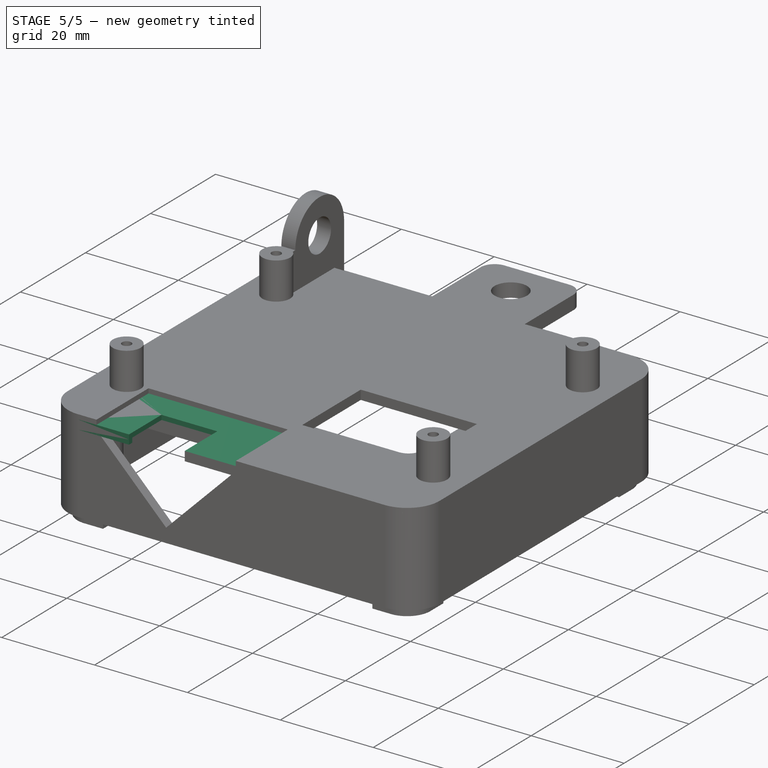
[diagram: stage 5 of 5 — iso view after this stage's code; geometry added in this stage tinted green]
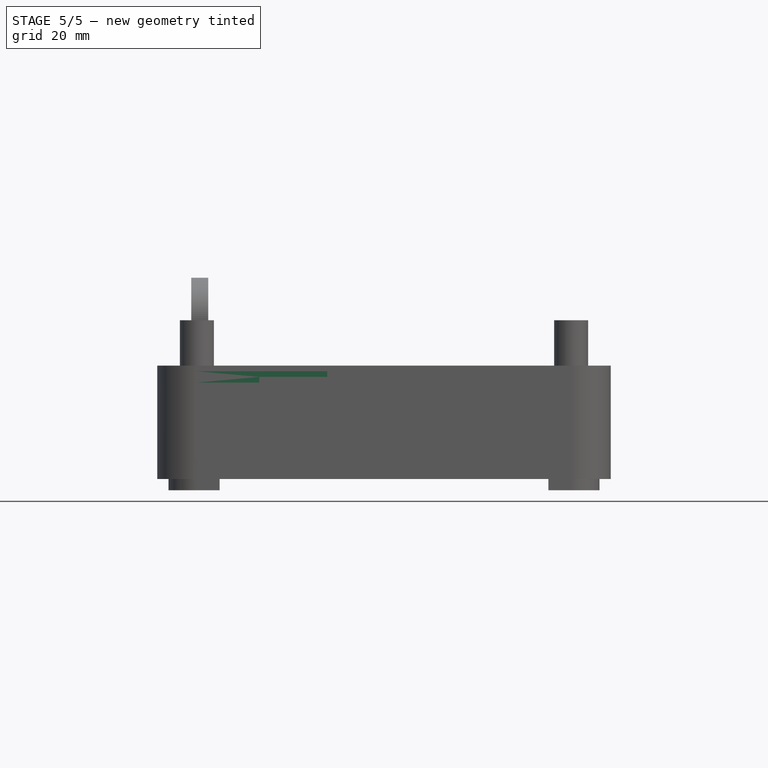
[diagram: stage 5 of 5 — front view after this stage's code; geometry added in this stage tinted green]
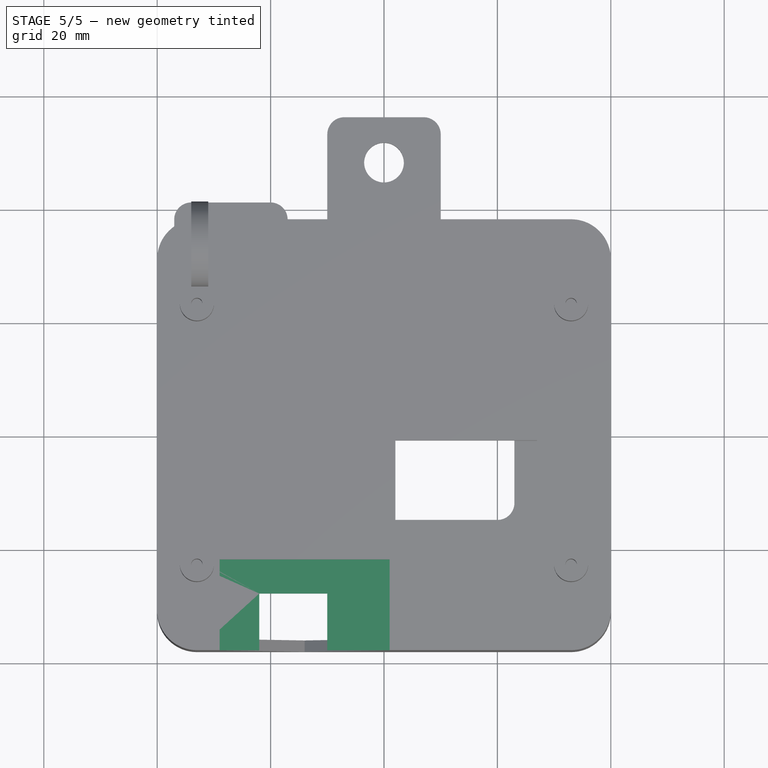
[diagram: stage 5 of 5 — top view after this stage's code; geometry added in this stage tinted green]
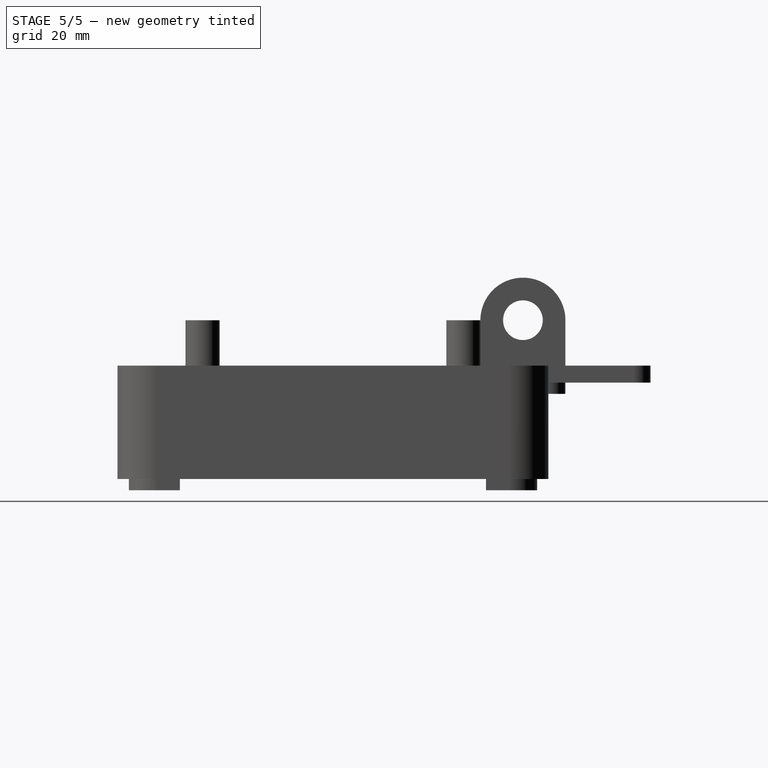
[diagram: stage 5 of 5 — right view after this stage's code; geometry added in this stage tinted green]
FEATURE [Sketcher::SketchObject] Sketch011
  ArcFitTolerance = 1e-06
  AttachmentSupport = -> [XY_Plane007]
  FullyConstrained = true
  MakeInternals = false
  MapMode = 5
  sketch-geometry (18):
    g0: LineSegment [constr] StartX=-33 StartY=23 StartZ=0 EndX=-33 EndY=-23 EndZ=0
    g1: LineSegment [constr] StartX=-33 StartY=-23 StartZ=0 EndX=33 EndY=-23 EndZ=0
    g2: LineSegment [constr] StartX=33 StartY=-23 StartZ=0 EndX=33 EndY=23 EndZ=0
    g3: LineSegment [constr] StartX=33 StartY=23 StartZ=0 EndX=-33 EndY=23 EndZ=0
    g4: LineSegment StartX=-40 StartY=31 StartZ=0 EndX=-40 EndY=-31 EndZ=0
    g5: LineSegment StartX=-33 StartY=-38 StartZ=0 EndX=33 EndY=-38 EndZ=0
    g6: LineSegment StartX=40 StartY=-31 StartZ=0 EndX=40 EndY=31 EndZ=0
    g7: LineSegment StartX=33 StartY=38 StartZ=0 EndX=-33 EndY=38 EndZ=0
    g8: ArcOfCircle CenterX=-33 CenterY=31 CenterZ=0 NormalX=0 NormalY=0 NormalZ=1 AngleXU=0 Radius=7 StartAngle=1.5708 EndAngle=3.14159
    g9: ArcOfCircle CenterX=-33 CenterY=-31 CenterZ=0 NormalX=0 NormalY=0 NormalZ=1 AngleXU=0 Radius=7 StartAngle=3.14159 EndAngle=4.71239
    g10: ArcOfCircle CenterX=33 CenterY=-31 CenterZ=0 NormalX=0 NormalY=0 NormalZ=1 AngleXU=0 Radius=7 StartAngle=4.71239 EndAngle=6.28319
    g11: ArcOfCircle CenterX=33 CenterY=31 CenterZ=0 NormalX=0 NormalY=0 NormalZ=1 AngleXU=0 Radius=7 StartAngle=8.64e-14 EndAngle=1.5708
    g12: GeomPoint [constr] X=-40 Y=38 Z=0
    g13: GeomPoint [constr] X=40 Y=-38 Z=0
    g14: Circle CenterX=-33 CenterY=23 CenterZ=0 NormalX=0 NormalY=0 NormalZ=1 AngleXU=0 Radius=1
    g15: Circle CenterX=33 CenterY=23 CenterZ=0 NormalX=0 NormalY=0 NormalZ=1 AngleXU=0 Radius=1
    g16: Circle CenterX=33 CenterY=-23 CenterZ=0 NormalX=0 NormalY=0 NormalZ=1 AngleXU=0 Radius=1
    g17: Circle CenterX=-33 CenterY=-23 CenterZ=0 NormalX=0 NormalY=0 NormalZ=1 AngleXU=0 Radius=1
  constraints (43):
    c: Coincident(g0,g1)
    c: Coincident(g1,g2)
    c: Coincident(g2,g3)
    c: Coincident(g3,g0)
    c: Vertical(g0)
    c: Vertical(g2)
    c: Horizontal(g1)
    c: Horizontal(g3)
    c: DistanceX(g3,g3) = 66
    c: DistanceY(g2,g2) = 46
    c: Symmetric(g0,g1,g-1)
    c: Tangent(g4,g8) = -1.5708
    c: Tangent(g4,g9) = -1.5708
    c: Tangent(g5,g9) = -1.5708
    c: Tangent(g5,g10) = -1.5708
    c: Tangent(g6,g10) = -1.5708
    c: Tangent(g6,g11) = -1.5708
    c: Tangent(g7,g11) = -1.5708
    c: Tangent(g7,g8) = -1.5708
    c: Vertical(g4)
    c: Vertical(g6)
    c: Horizontal(g5)
    c: Horizontal(g7)
    c: Equal(g8,g9)
    c: Equal(g9,g10)
    c: Equal(g10,g11)
    c: PointOnObject(g12,g4)
    c: PointOnObject(g12,g7)
    c: PointOnObject(g13,g5)
    c: PointOnObject(g13,g6)
    c: Radius(g11) = 7
    c: DistanceY(g0,g8) = 8
    c: DistanceY(g10,g1) = 8
    c: DistanceX(g8,g0) = 0
    c: DistanceX(g1,g10) = 0
    c: Coincident(g14,g0)
    c: Coincident(g15,g2)
    c: Coincident(g16,g1)
    c: Coincident(g17,g0)
    c: Equal(g16,g15)
    c: Equal(g15,g14)
    c: Equal(g14,g17)
    c: Diameter(g15) = 2
FEATURE [PartDesign::Pad] Pad010
  Direction = (0,0,1)
  Length = 1
  Length2 = 10
  Profile = -> Sketch011
  ReferenceAxis = -> Sketch011 [N_Axis]
  Suppressed = false
  Type = 0
FEATURE [Sketcher::SketchObject] Sketch012
  ArcFitTolerance = 1e-06
  AttachmentSupport = -> [XY_Plane007]
  FullyConstrained = true
  MakeInternals = false
  MapMode = 5
  sketch-geometry (24):
    g0: LineSegment [constr] StartX=-33 StartY=23 StartZ=0 EndX=-33 EndY=-23 EndZ=0
    g1: LineSegment [constr] StartX=-33 StartY=-23 StartZ=0 EndX=33 EndY=-23 EndZ=0
    g2: LineSegment [constr] StartX=33 StartY=-23 StartZ=0 EndX=33 EndY=23 EndZ=0
    g3: LineSegment [constr] StartX=33 StartY=23 StartZ=0 EndX=-33 EndY=23 EndZ=0
    g4: LineSegment StartX=-40 StartY=31 StartZ=0 EndX=-40 EndY=-31 EndZ=0
    g5: LineSegment StartX=-33 StartY=-38 StartZ=0 EndX=33 EndY=-38 EndZ=0
    g6: LineSegment StartX=40 StartY=-31 StartZ=0 EndX=40 EndY=31 EndZ=0
    g7: LineSegment StartX=33 StartY=38 StartZ=0 EndX=-33 EndY=38 EndZ=0
    g8: ArcOfCircle CenterX=-33 CenterY=31 CenterZ=0 NormalX=0 NormalY=0 NormalZ=1 AngleXU=0 Radius=7 StartAngle=1.5708 EndAngle=3.14159
    g9: ArcOfCircle CenterX=-33 CenterY=-31 CenterZ=0 NormalX=0 NormalY=0 NormalZ=1 AngleXU=0 Radius=7 StartAngle=3.14159 EndAngle=4.71239
    g10: ArcOfCircle CenterX=33 CenterY=-31 CenterZ=0 NormalX=0 NormalY=0 NormalZ=1 AngleXU=0 Radius=7 StartAngle=4.71239 EndAngle=6.28319
    g11: ArcOfCircle CenterX=33 CenterY=31 CenterZ=0 NormalX=0 NormalY=0 NormalZ=1 AngleXU=0 Radius=7 StartAngle=2e-16 EndAngle=1.5708
    g12: GeomPoint [constr] X=-40 Y=38 Z=0
    g13: GeomPoint [constr] X=40 Y=-38 Z=0
    g14: LineSegment StartX=33 StartY=37 StartZ=0 EndX=-33 EndY=37 EndZ=0
    g15: LineSegment StartX=-39 StartY=31 StartZ=0 EndX=-39 EndY=-31 EndZ=0
    g16: LineSegment StartX=-33 StartY=-37 StartZ=0 EndX=33 EndY=-37 EndZ=0
    g17: LineSegment StartX=39 StartY=-31 StartZ=0 EndX=39 EndY=31 EndZ=0
    g18: ArcOfCircle CenterX=33 CenterY=31 CenterZ=0 NormalX=0 NormalY=0 NormalZ=1 AngleXU=0 Radius=6 StartAngle=0 EndAngle=1.5708
    g19: ArcOfCircle CenterX=-33 CenterY=31 CenterZ=0 NormalX=0 NormalY=0 NormalZ=1 AngleXU=0 Radius=6 StartAngle=1.5708 EndAngle=3.14159
    g20: ArcOfCircle CenterX=-33 CenterY=-31 CenterZ=0 NormalX=0 NormalY=0 NormalZ=1 AngleXU=0 Radius=6 StartAngle=3.14159 EndAngle=4.71239
    g21: ArcOfCircle CenterX=33 CenterY=-31 CenterZ=0 NormalX=0 NormalY=0 NormalZ=1 AngleXU=0 Radius=6 StartAngle=4.71239 EndAngle=6.28319
    g22: GeomPoint [constr] X=39 Y=37 Z=0
    g23: GeomPoint [constr] X=-39 Y=-37 Z=0
  constraints (57):
    c: Coincident(g0,g1)
    c: Coincident(g1,g2)
    c: Coincident(g2,g3)
    c: Coincident(g3,g0)
    c: Vertical(g0)
    c: Vertical(g2)
    c: Horizontal(g1)
    c: Horizontal(g3)
    c: DistanceX(g3,g3) = 66
    c: DistanceY(g2,g2) = 46
    c: Symmetric(g0,g1,g-1)
    c: Tangent(g4,g8) = -1.5708
    c: Tangent(g4,g9) = -1.5708
    c: Tangent(g5,g9) = -1.5708
    c: Tangent(g5,g10) = -1.5708
    c: Tangent(g6,g10) = -1.5708
    c: Tangent(g6,g11) = -1.5708
    c: Tangent(g7,g11) = -1.5708
    c: Tangent(g7,g8) = -1.5708
    c: Vertical(g4)
    c: Vertical(g6)
    c: Horizontal(g5)
    c: Horizontal(g7)
    c: Equal(g8,g9)
    c: Equal(g9,g10)
    c: Equal(g10,g11)
    c: PointOnObject(g12,g4)
    c: PointOnObject(g12,g7)
    c: PointOnObject(g13,g5)
    c: PointOnObject(g13,g6)
    c: Radius(g11) = 7
    c: DistanceY(g0,g8) = 8
    c: DistanceY(g10,g1) = 8
    c: DistanceX(g8,g0) = 0
    c: DistanceX(g1,g10) = 0
    c: Tangent(g14,g18) = -1.5708
    c: Tangent(g14,g19) = -1.5708
    c: Tangent(g15,g19) = -1.5708
    c: Tangent(g15,g20) = -1.5708
    c: Tangent(g16,g20) = -1.5708
    c: Tangent(g16,g21) = -1.5708
    c: Tangent(g17,g21) = -1.5708
    c: Tangent(g17,g18) = -1.5708
    c: Horizontal(g14)
    c: Horizontal(g16)
    c: Vertical(g15)
    c: Vertical(g17)
    c: Equal(g18,g19)
    c: Equal(g19,g20)
    c: Equal(g20,g21)
    c: PointOnObject(g22,g14)
    c: PointOnObject(g22,g17)
    c: PointOnObject(g23,g15)
    c: PointOnObject(g23,g16)
    c: Coincident(g18,g11)
    c: Coincident(g9,g20)
    c: Radius(g19) = 6
FEATURE [PartDesign::Pad] Pad011
  BaseFeature = -> Pad010
  Direction = (0,0,1)
  Length = 1
  Length2 = 10
  Profile = -> Sketch012
  ReferenceAxis = -> Sketch012 [N_Axis]
  Reversed = true
  Suppressed = false
  Type = 0
FEATURE [Sketcher::SketchObject] Sketch013
  ArcFitTolerance = 1e-06
  AttachmentSupport = -> [XY_Plane007]
  FullyConstrained = true
  MakeInternals = false
  MapMode = 5
  sketch-geometry (8):
    g0: LineSegment [constr] StartX=-33 StartY=23 StartZ=0 EndX=-33 EndY=-23 EndZ=0
    g1: LineSegment [constr] StartX=-33 StartY=-23 StartZ=0 EndX=33 EndY=-23 EndZ=0
    g2: LineSegment [constr] StartX=33 StartY=-23 StartZ=0 EndX=33 EndY=23 EndZ=0
    g3: LineSegment [constr] StartX=33 StartY=23 StartZ=0 EndX=-33 EndY=23 EndZ=0
    g4: LineSegment StartX=2 StartY=-1 StartZ=0 EndX=2 EndY=-19 EndZ=0
    g5: LineSegment StartX=2 StartY=-19 StartZ=0 EndX=27 EndY=-19 EndZ=0
    g6: LineSegment StartX=27 StartY=-19 StartZ=0 EndX=27 EndY=-1 EndZ=0
    g7: LineSegment StartX=27 StartY=-1 StartZ=0 EndX=2 EndY=-1 EndZ=0
  constraints (23):
    c: Coincident(g0,g1)
    c: Coincident(g1,g2)
    c: Coincident(g2,g3)
    c: Coincident(g3,g0)
    c: Vertical(g0)
    c: Vertical(g2)
    c: Horizontal(g1)
    c: Horizontal(g3)
    c: DistanceX(g3,g3) = 66
    c: DistanceY(g2,g2) = 46
    c: Symmetric(g0,g1,g-1)
    c: Coincident(g4,g5)
    c: Coincident(g5,g6)
    c: Coincident(g6,g7)
    c: Coincident(g7,g4)
    c: Vertical(g4)
    c: Vertical(g6)
    c: Horizontal(g5)
    c: Horizontal(g7)
    c: DistanceX(g7,g7) = 25
    c: DistanceY(g6,g6) = 18
    c: DistanceX(g5,g1) = 6
    c: DistanceY(g1,g5) = 4
FEATURE [PartDesign::Pocket] Pocket
  BaseFeature = -> Pad011
  Direction = (0,0,-1)
  Length = 5
  Length2 = 5
  Midplane = true
  Profile = -> Sketch013
  ReferenceAxis = -> Sketch013 [N_Axis]
  Suppressed = false
  Type = 1
FEATURE [Sketcher::SketchObject] Sketch
  ArcFitTolerance = 1e-06
  AttachmentSupport = -> [XY_Plane007]
  FullyConstrained = true
  MakeInternals = false
  MapMode = 5
  sketch-geometry (4):
    g0: LineSegment StartX=-22 StartY=-28 StartZ=0 EndX=-22 EndY=-40 EndZ=0
    g1: LineSegment StartX=-22 StartY=-40 StartZ=0 EndX=-10 EndY=-40 EndZ=0
    g2: LineSegment StartX=-10 StartY=-40 StartZ=0 EndX=-10 EndY=-28 EndZ=0
    g3: LineSegment StartX=-10 StartY=-28 StartZ=0 EndX=-22 EndY=-28 EndZ=0
  constraints (12):
    c: Coincident(g0,g1)
    c: Coincident(g1,g2)
    c: Coincident(g2,g3)
    c: Coincident(g3,g0)
    c: Vertical(g0)
    c: Vertical(g2)
    c: Horizontal(g1)
    c: Horizontal(g3)
    c: DistanceY(g0) = -28
    c: DistanceX(g1) = -10
    c: DistanceY(g1) = -40
    c: DistanceX(g1,g1) = 12
FEATURE [PartDesign::Pocket] Pocket001
  BaseFeature = -> Pocket
  Direction = (0,0,-1)
  Length = 5
  Length2 = 5
  Midplane = true
  Profile = -> Sketch
  ReferenceAxis = -> Sketch [N_Axis]
  Suppressed = false
  Type = 1
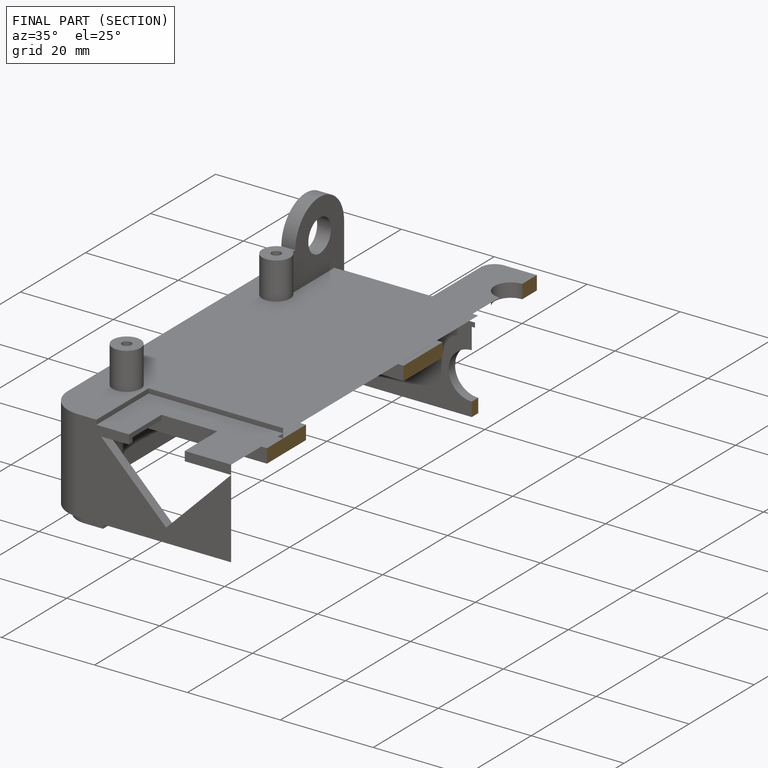
[diagram: finished part — half-section view (interior)]
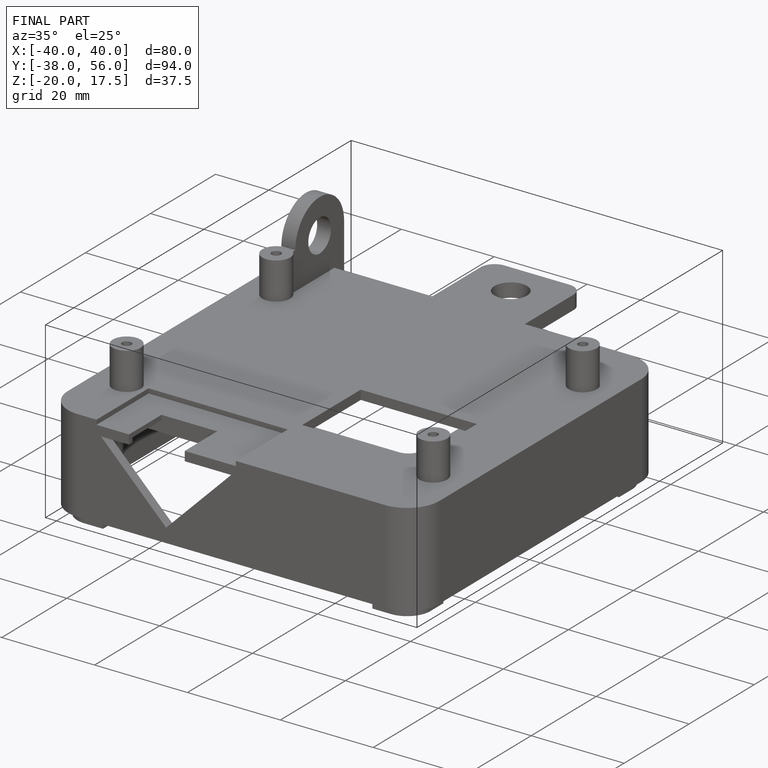
[diagram: finished part — iso view with bounding-box wireframe]
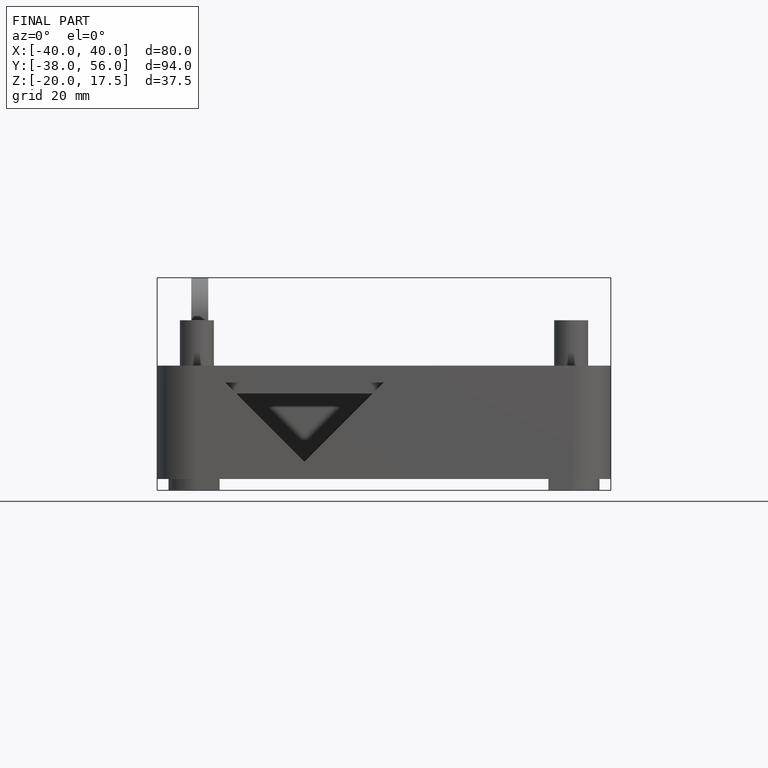
[diagram: finished part — front view with bounding-box wireframe]
